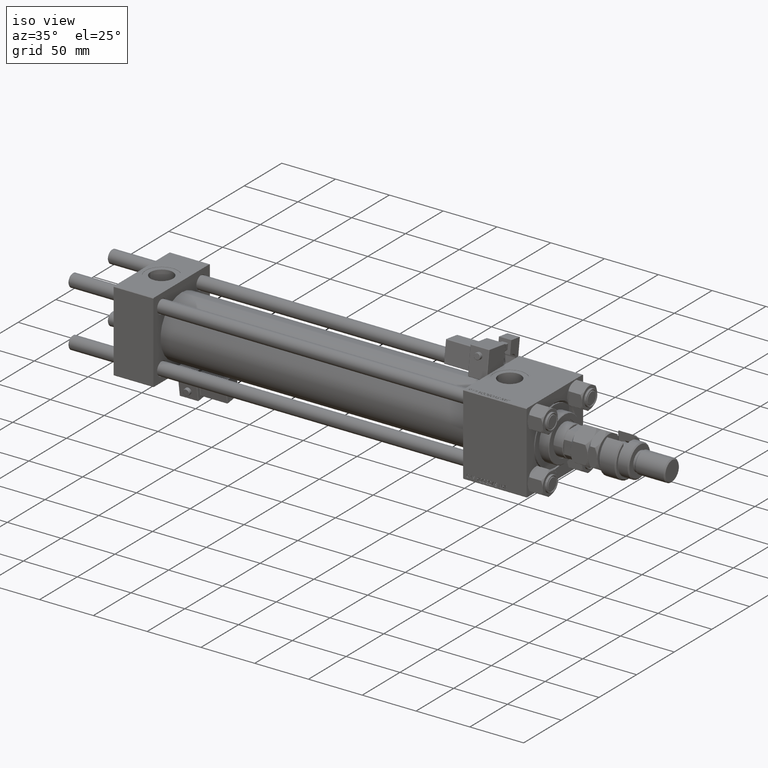
[diagram: clean part render]
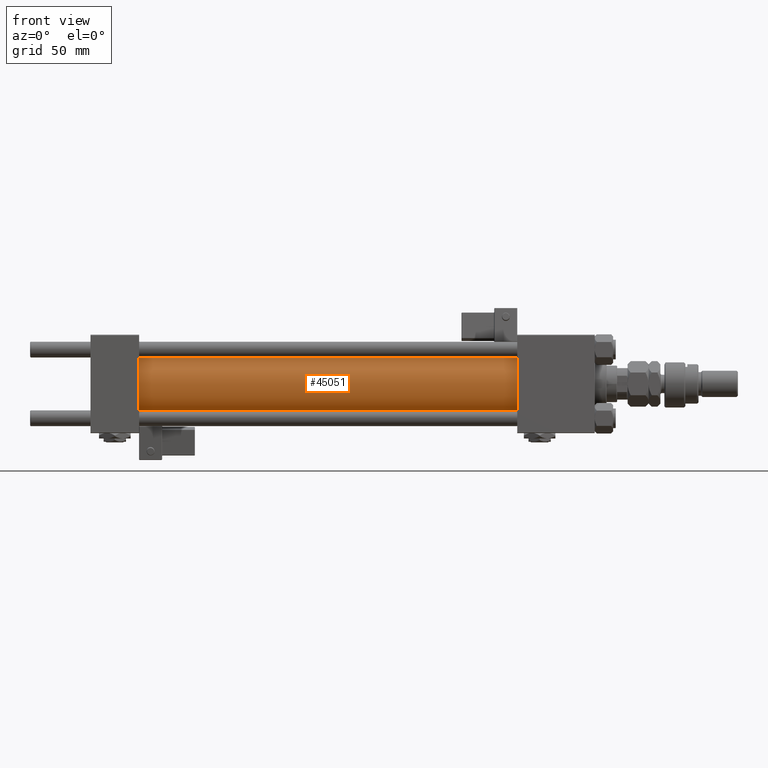
[diagram: tour spotlight — one face highlighted and labeled with its STEP entity id]
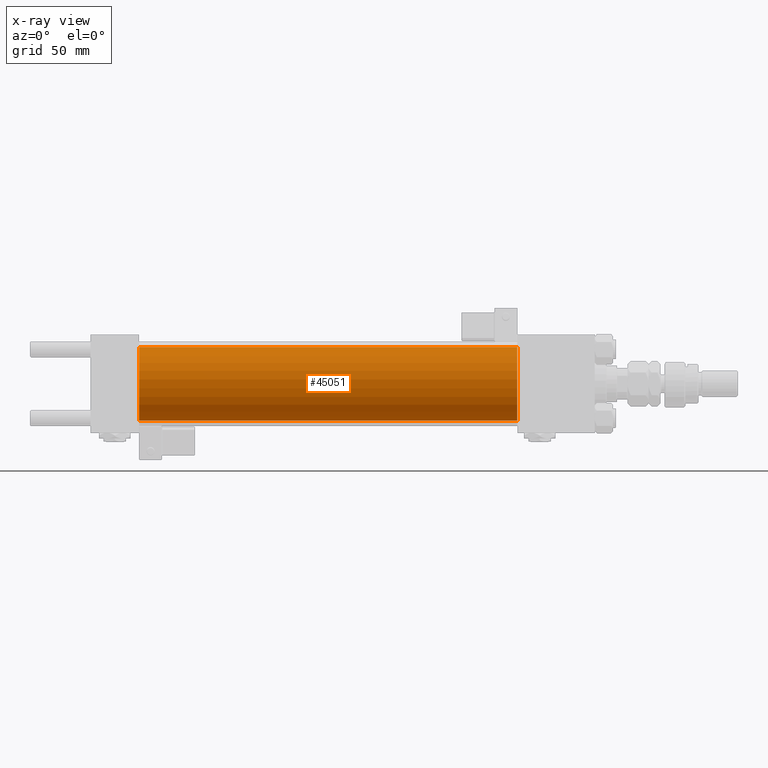
[diagram: x-ray of the same camera — body ghosted, this tour face saturated]
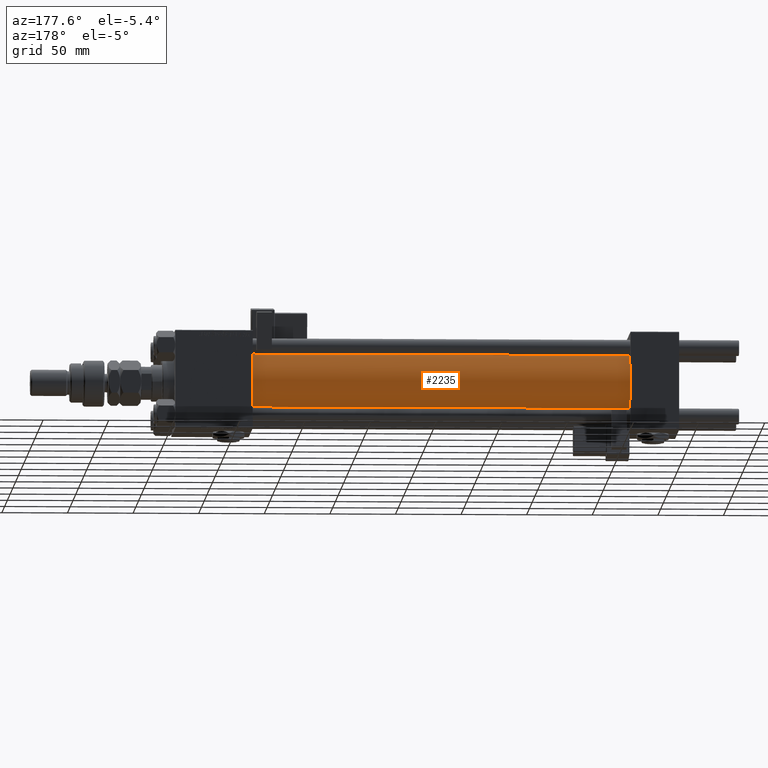
[diagram: tour spotlight — one face highlighted and labeled with its STEP entity id]
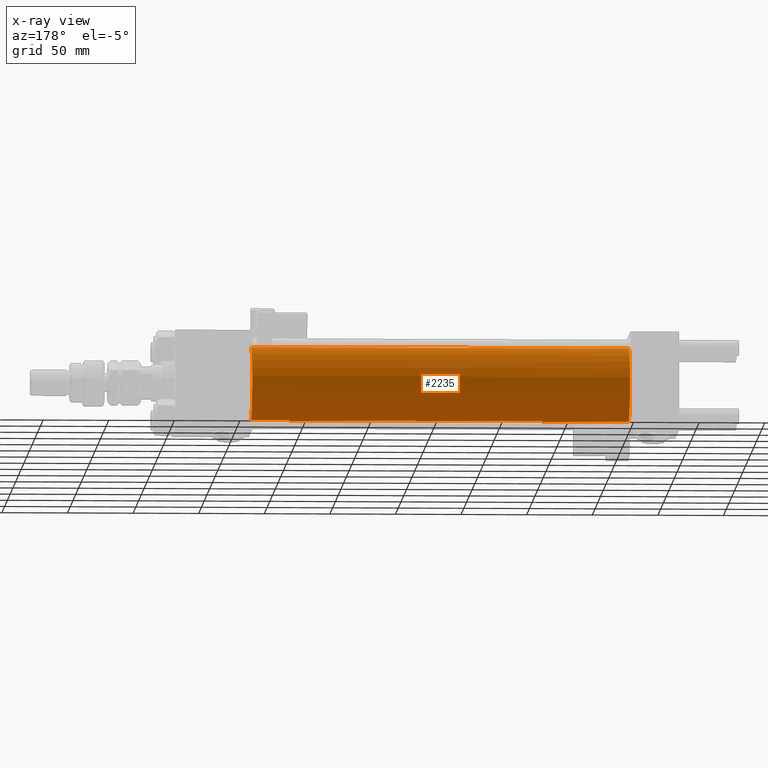
[diagram: x-ray of the same camera — body ghosted, this tour face saturated]
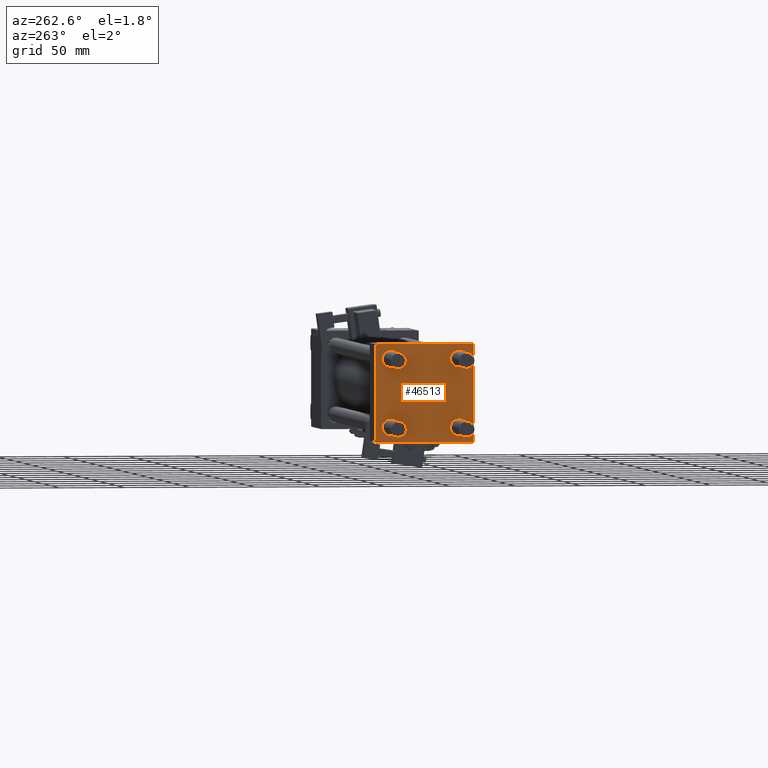
[diagram: tour spotlight — one face highlighted and labeled with its STEP entity id]
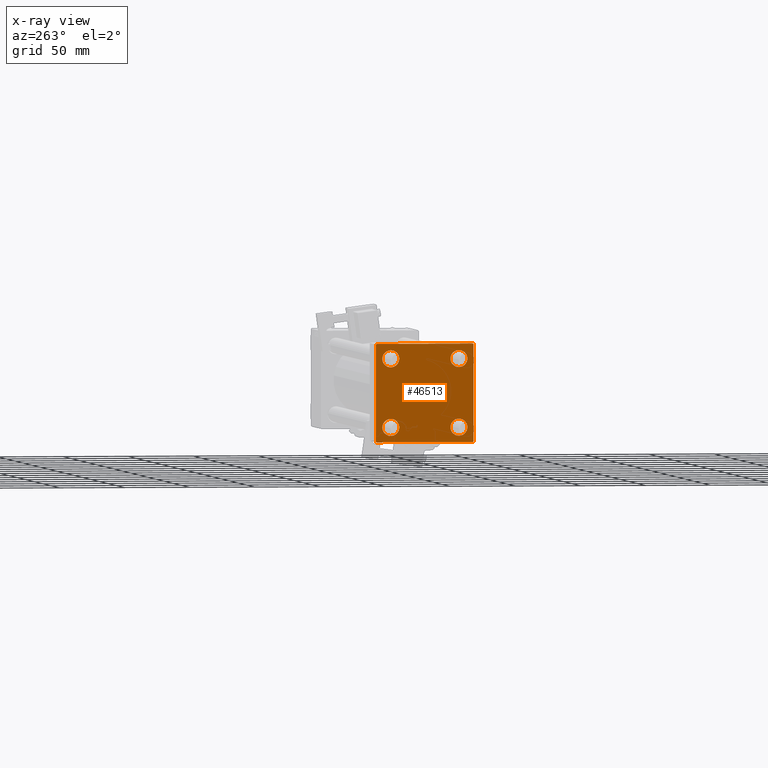
[diagram: x-ray of the same camera — body ghosted, this tour face saturated]
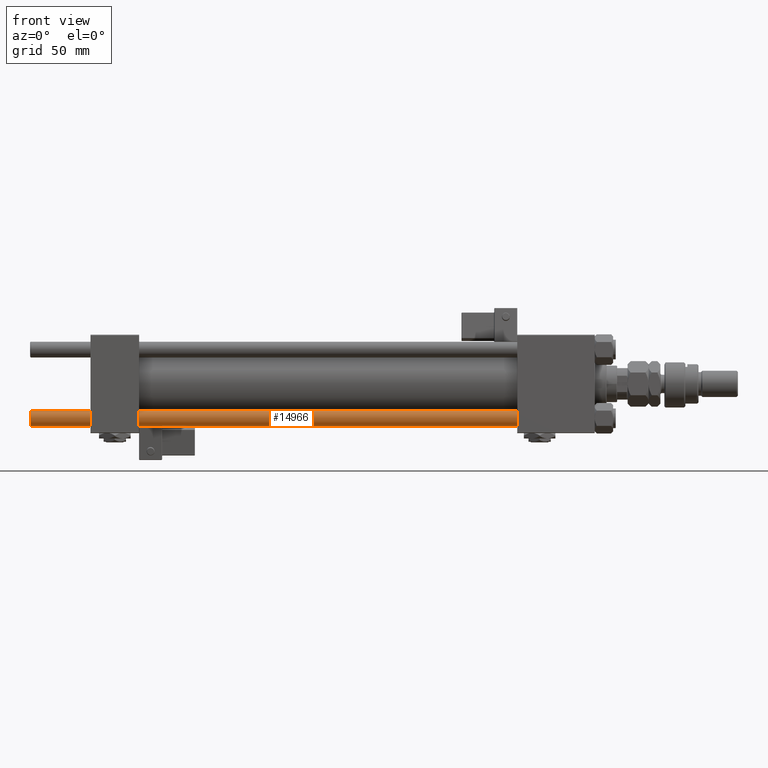
[diagram: tour spotlight — one face highlighted and labeled with its STEP entity id]
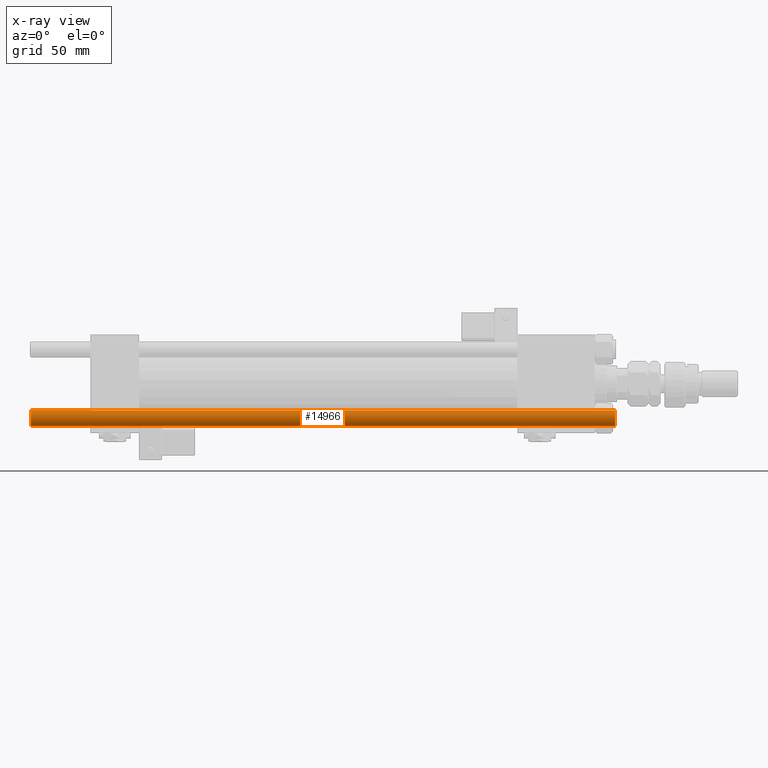
[diagram: x-ray of the same camera — body ghosted, this tour face saturated]
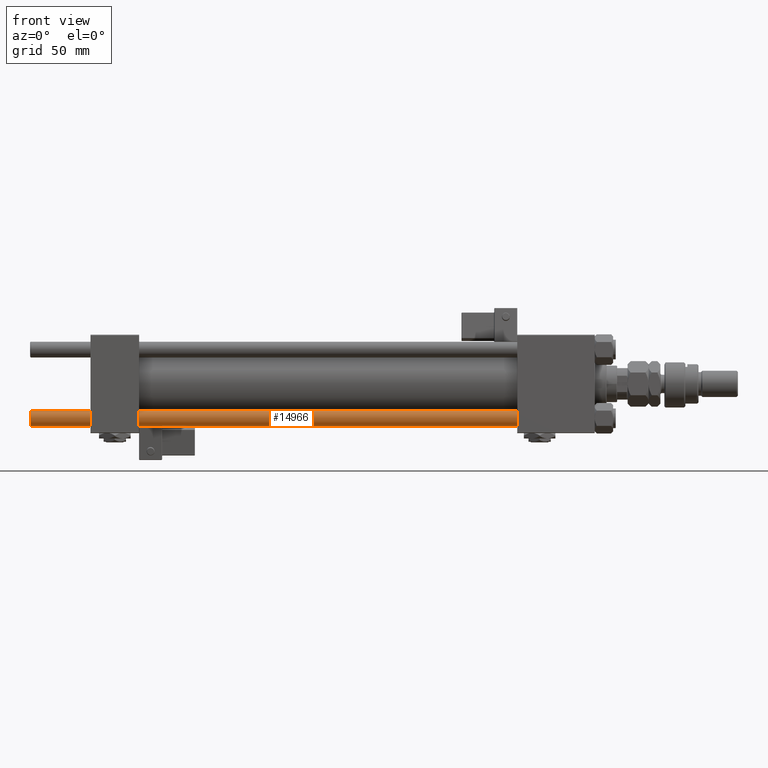
[diagram: tour spotlight — one face highlighted and labeled with its STEP entity id]
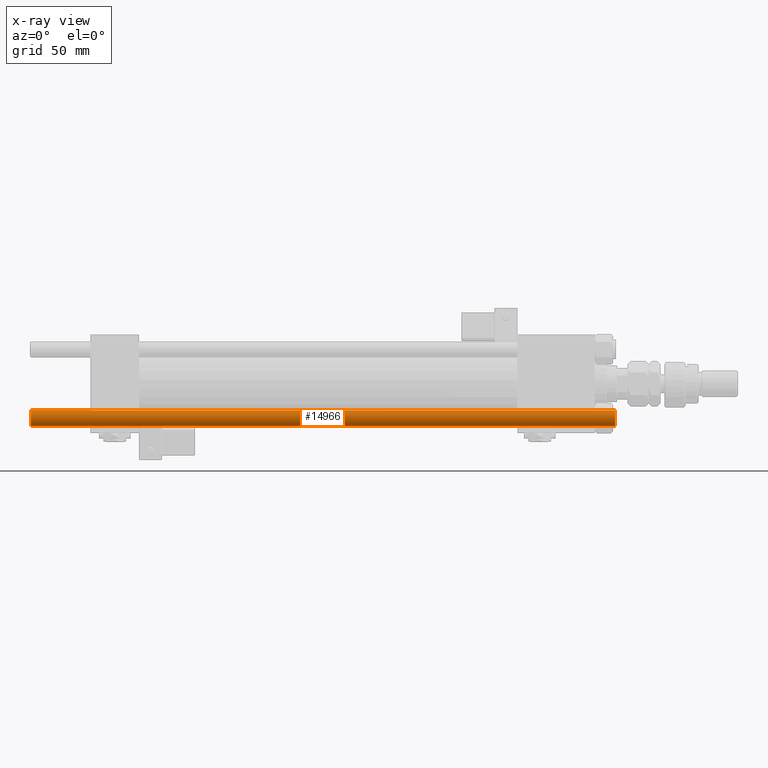
[diagram: x-ray of the same camera — body ghosted, this tour face saturated]
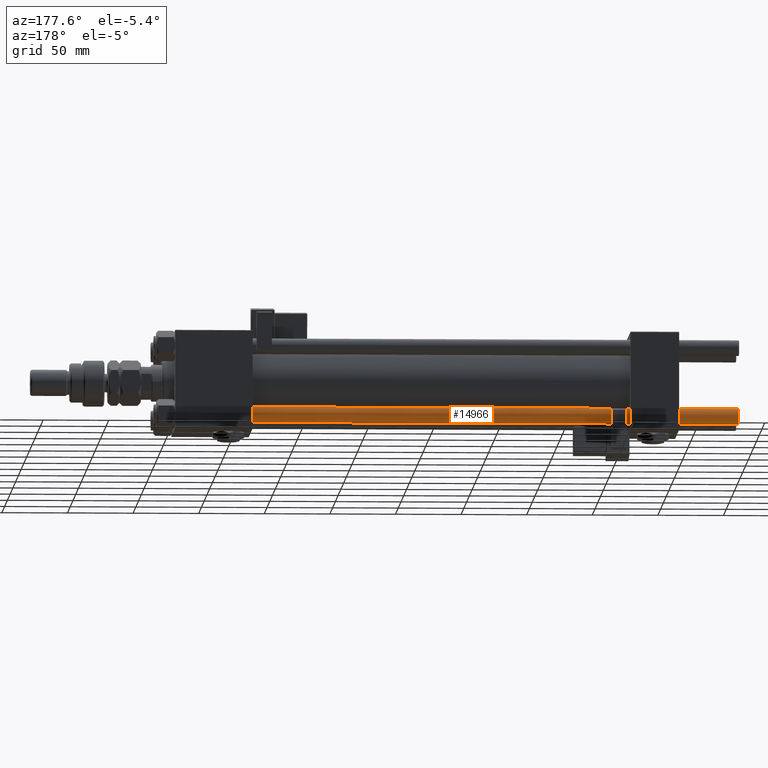
[diagram: tour spotlight — one face highlighted and labeled with its STEP entity id]
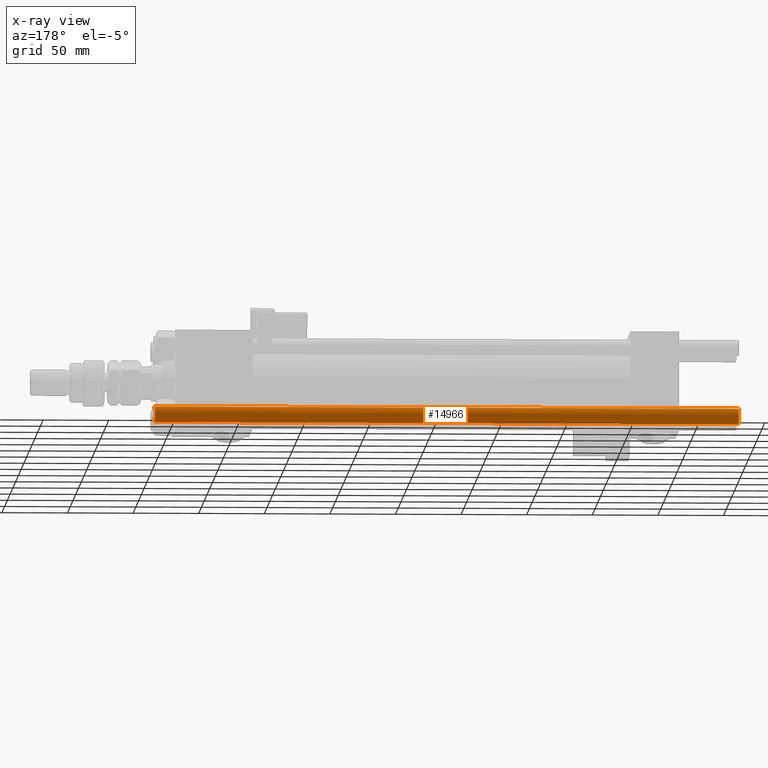
[diagram: x-ray of the same camera — body ghosted, this tour face saturated]
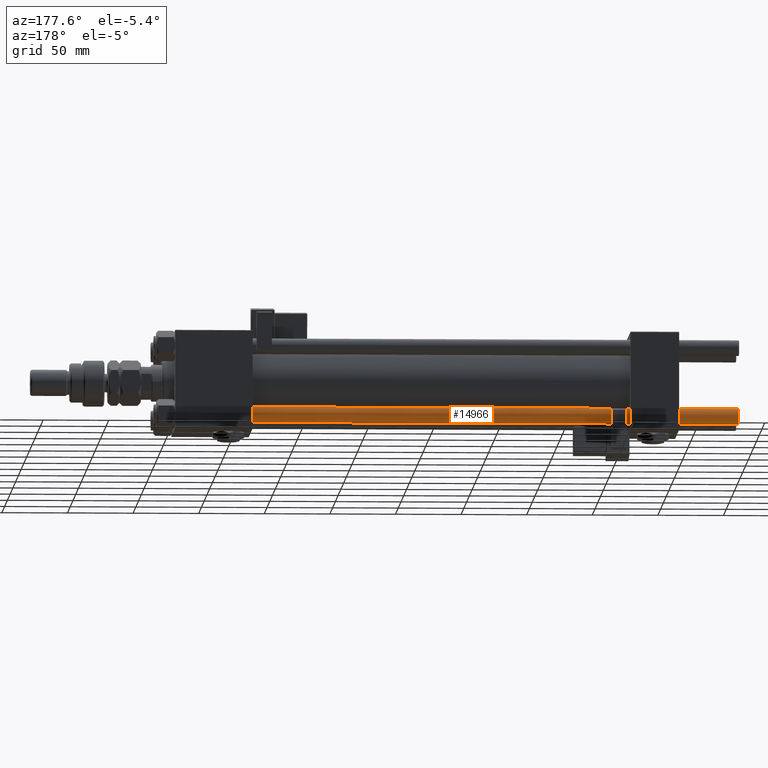
[diagram: tour spotlight — one face highlighted and labeled with its STEP entity id]
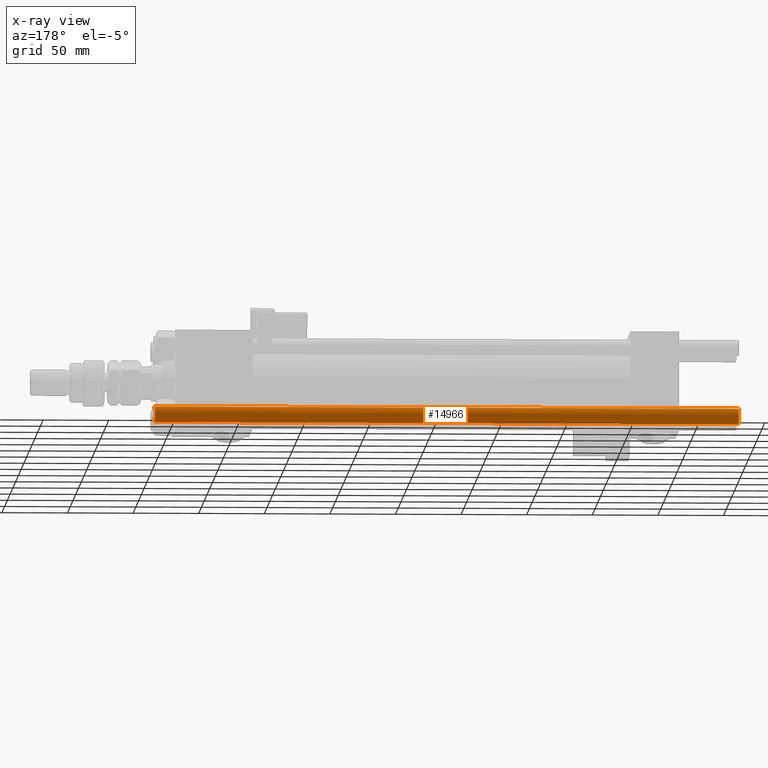
[diagram: x-ray of the same camera — body ghosted, this tour face saturated]
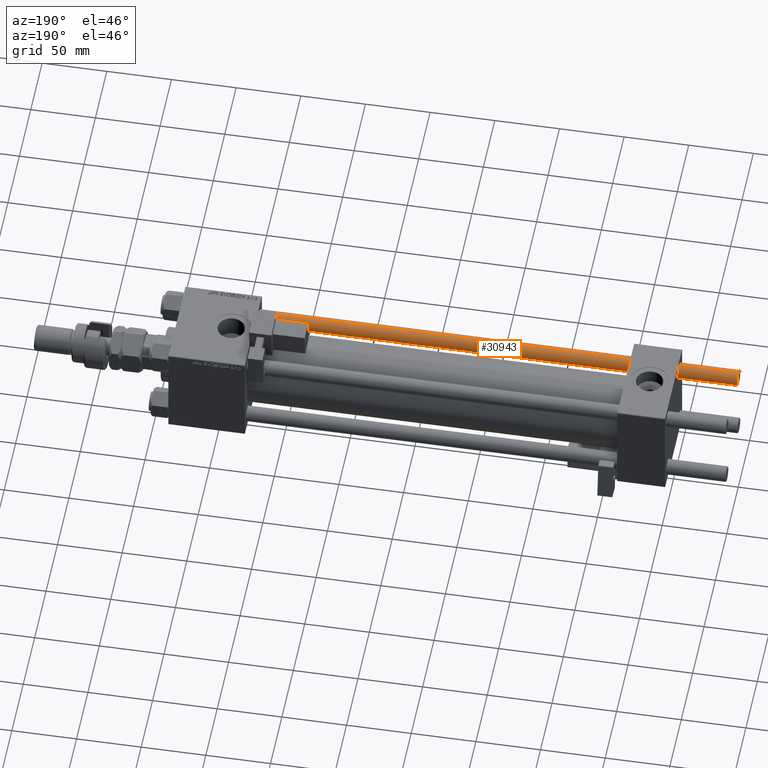
[diagram: tour spotlight — one face highlighted and labeled with its STEP entity id]
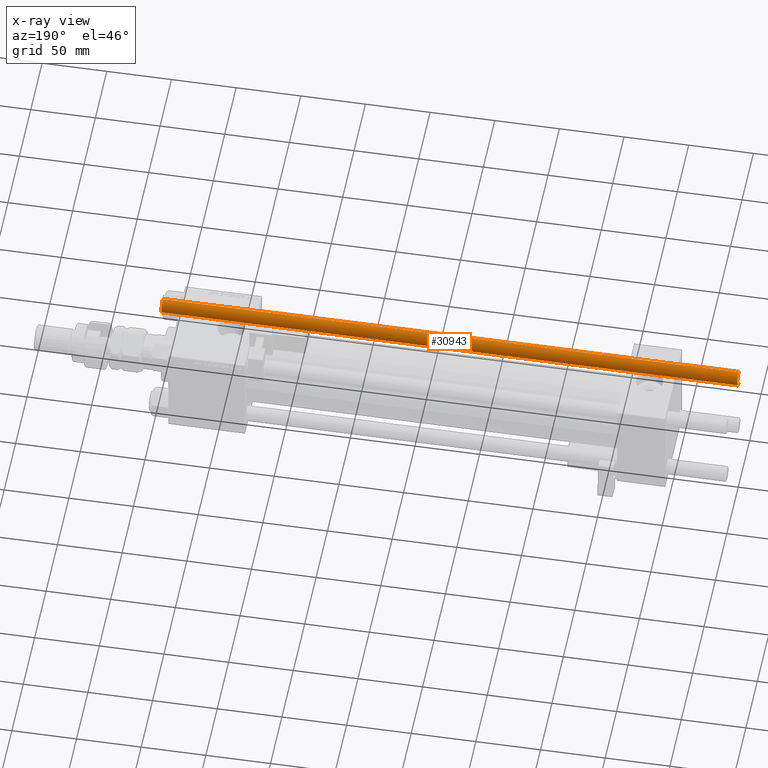
[diagram: x-ray of the same camera — body ghosted, this tour face saturated]
A machine part: a face-by-face anatomy tour. The part has 1472 B-rep faces; the first image is the clean iso view, then the 8 largest visible faces are spotlighted one at a time (largest first), each with its STEP entity span.

Face 1 — front view, entity #45051. An x-ray twin of the same camera follows (body ghosted, this face saturated) — the face is partly hidden behind the body. In plain terms, the highlighted cylindrical surface (partial cylindrical patch) has radius 28 mm, axis along (-1, -0, -0).
Definition (entity closure, byte-faithful):
#325 = CARTESIAN_POINT ( 'NONE',  ( 324.9999999999999432, 0.000000000000000000, 0.000000000000000000 ) ) ;
#915 = CARTESIAN_POINT ( 'NONE',  ( 36.99999999999997868, 0.000000000000000000, 0.000000000000000000 ) ) ;
#1011 = CARTESIAN_POINT ( 'NONE',  ( 36.99999999999997868, 3.429011037612589276E-15, -28.00000000000000000 ) ) ;
#3151 = CARTESIAN_POINT ( 'NONE',  ( 324.9999999999999432, 0.000000000000000000, 28.00000000000000000 ) ) ;
#3997 = LINE ( 'NONE', #3151, #42825 ) ;
#4378 = DIRECTION ( 'NONE',  ( 1.000000000000000000, -0.000000000000000000, 0.000000000000000000 ) ) ;
#4392 = AXIS2_PLACEMENT_3D ( 'NONE', #915, #4378, #17607 ) ;
#6531 = EDGE_CURVE ( 'NONE', #54790, #24582, #3997, .T. ) ;
#8095 = LINE ( 'NONE', #48013, #10348 ) ;
#8546 = EDGE_CURVE ( 'NONE', #24582, #41951, #13546, .T. ) ;
#8952 = CYLINDRICAL_SURFACE ( 'NONE', #34857, 28.00000000000000000 ) ;
#10088 = DIRECTION ( 'NONE',  ( 0.000000000000000000, 0.000000000000000000, -1.000000000000000000 ) ) ;
#10348 = VECTOR ( 'NONE', #25899, 1000.000000000000000 ) ;
#13546 = CIRCLE ( 'NONE', #4392, 28.00000000000000000 ) ;
#13855 = CARTESIAN_POINT ( 'NONE',  ( 324.9999999999999432, 0.000000000000000000, 0.000000000000000000 ) ) ;
#16079 = CARTESIAN_POINT ( 'NONE',  ( 324.9999999999999432, 0.000000000000000000, 28.00000000000000000 ) ) ;
#17607 = DIRECTION ( 'NONE',  ( 0.000000000000000000, 0.000000000000000000, 1.000000000000000000 ) ) ;
#18444 = DIRECTION ( 'NONE',  ( -1.000000000000000000, -0.000000000000000000, -0.000000000000000000 ) ) ;
#20045 = ORIENTED_EDGE ( 'NONE', *, *, #8546, .T. ) ;
#21516 = DIRECTION ( 'NONE',  ( -1.000000000000000000, -0.000000000000000000, -0.000000000000000000 ) ) ;
#24582 = VERTEX_POINT ( 'NONE', #29413 ) ;
#25488 = ORIENTED_EDGE ( 'NONE', *, *, #25920, .F. ) ;
#25899 = DIRECTION ( 'NONE',  ( -1.000000000000000000, -0.000000000000000000, -0.000000000000000000 ) ) ;
#25920 = EDGE_CURVE ( 'NONE', #51599, #41951, #8095, .T. ) ;
#26485 = DIRECTION ( 'NONE',  ( 0.000000000000000000, 0.000000000000000000, 1.000000000000000000 ) ) ;
#27894 = DIRECTION ( 'NONE',  ( 1.000000000000000000, 0.000000000000000000, 0.000000000000000000 ) ) ;
#29413 = CARTESIAN_POINT ( 'NONE',  ( 36.99999999999997868, 0.000000000000000000, 28.00000000000000000 ) ) ;
#31512 = ORIENTED_EDGE ( 'NONE', *, *, #37579, .F. ) ;
#34857 = AXIS2_PLACEMENT_3D ( 'NONE', #325, #18444, #26485 ) ;
#35165 = ORIENTED_EDGE ( 'NONE', *, *, #6531, .T. ) ;
#37579 = EDGE_CURVE ( 'NONE', #54790, #51599, #38241, .T. ) ;
#38241 = CIRCLE ( 'NONE', #40088, 28.00000000000000000 ) ;
#40088 = AXIS2_PLACEMENT_3D ( 'NONE', #13855, #27894, #10088 ) ;
#41951 = VERTEX_POINT ( 'NONE', #1011 ) ;
#42825 = VECTOR ( 'NONE', #21516, 1000.000000000000000 ) ;
#43448 = EDGE_LOOP ( 'NONE', ( #25488, #31512, #35165, #20045 ) ) ;
#45051 = ADVANCED_FACE ( 'NONE', ( #48600 ), #8952, .T. ) ;
#48013 = CARTESIAN_POINT ( 'NONE',  ( 324.9999999999999432, 3.429011037612589276E-15, -28.00000000000000000 ) ) ;
#48600 = FACE_OUTER_BOUND ( 'NONE', #43448, .T. ) ;
#51599 = VERTEX_POINT ( 'NONE', #54505 ) ;
#54505 = CARTESIAN_POINT ( 'NONE',  ( 324.9999999999999432, 3.429011037612589276E-15, -28.00000000000000000 ) ) ;
#54790 = VERTEX_POINT ( 'NONE', #16079 ) ;

Face 2 — auxiliary view, entity #2235. An x-ray twin of the same camera follows (body ghosted, this face saturated) — the face is partly hidden behind the body. In plain terms, the highlighted cylindrical surface (partial cylindrical patch) has radius 28 mm, axis along (-1, -0, -0).
Definition (entity closure, byte-faithful):
#641 = ORIENTED_EDGE ( 'NONE', *, *, #53775, .F. ) ;
#1011 = CARTESIAN_POINT ( 'NONE',  ( 36.99999999999997868, 3.429011037612589276E-15, -28.00000000000000000 ) ) ;
#1493 = AXIS2_PLACEMENT_3D ( 'NONE', #32660, #19459, #6528 ) ;
#2235 = ADVANCED_FACE ( 'NONE', ( #19136 ), #10786, .T. ) ;
#3151 = CARTESIAN_POINT ( 'NONE',  ( 324.9999999999999432, 0.000000000000000000, 28.00000000000000000 ) ) ;
#3997 = LINE ( 'NONE', #3151, #42825 ) ;
#5381 = DIRECTION ( 'NONE',  ( 1.000000000000000000, -0.000000000000000000, 0.000000000000000000 ) ) ;
#6528 = DIRECTION ( 'NONE',  ( 0.000000000000000000, 0.000000000000000000, -1.000000000000000000 ) ) ;
#6531 = EDGE_CURVE ( 'NONE', #54790, #24582, #3997, .T. ) ;
#7886 = CIRCLE ( 'NONE', #1493, 28.00000000000000000 ) ;
#8095 = LINE ( 'NONE', #48013, #10348 ) ;
#10348 = VECTOR ( 'NONE', #25899, 1000.000000000000000 ) ;
#10786 = CYLINDRICAL_SURFACE ( 'NONE', #17855, 28.00000000000000000 ) ;
#15983 = EDGE_LOOP ( 'NONE', ( #641, #35951, #25789, #52955 ) ) ;
#16079 = CARTESIAN_POINT ( 'NONE',  ( 324.9999999999999432, 0.000000000000000000, 28.00000000000000000 ) ) ;
#17855 = AXIS2_PLACEMENT_3D ( 'NONE', #28309, #19977, #45843 ) ;
#19136 = FACE_OUTER_BOUND ( 'NONE', #15983, .T. ) ;
#19459 = DIRECTION ( 'NONE',  ( 1.000000000000000000, 0.000000000000000000, 0.000000000000000000 ) ) ;
#19977 = DIRECTION ( 'NONE',  ( -1.000000000000000000, -0.000000000000000000, -0.000000000000000000 ) ) ;
#21516 = DIRECTION ( 'NONE',  ( -1.000000000000000000, -0.000000000000000000, -0.000000000000000000 ) ) ;
#24582 = VERTEX_POINT ( 'NONE', #29413 ) ;
#25789 = ORIENTED_EDGE ( 'NONE', *, *, #28677, .T. ) ;
#25899 = DIRECTION ( 'NONE',  ( -1.000000000000000000, -0.000000000000000000, -0.000000000000000000 ) ) ;
#25920 = EDGE_CURVE ( 'NONE', #51599, #41951, #8095, .T. ) ;
#26925 = AXIS2_PLACEMENT_3D ( 'NONE', #32358, #5381, #53627 ) ;
#28309 = CARTESIAN_POINT ( 'NONE',  ( 324.9999999999999432, 0.000000000000000000, 0.000000000000000000 ) ) ;
#28677 = EDGE_CURVE ( 'NONE', #41951, #24582, #44402, .T. ) ;
#29413 = CARTESIAN_POINT ( 'NONE',  ( 36.99999999999997868, 0.000000000000000000, 28.00000000000000000 ) ) ;
#32358 = CARTESIAN_POINT ( 'NONE',  ( 36.99999999999997868, 0.000000000000000000, 0.000000000000000000 ) ) ;
#32660 = CARTESIAN_POINT ( 'NONE',  ( 324.9999999999999432, 0.000000000000000000, 0.000000000000000000 ) ) ;
#35951 = ORIENTED_EDGE ( 'NONE', *, *, #25920, .T. ) ;
#41951 = VERTEX_POINT ( 'NONE', #1011 ) ;
#42825 = VECTOR ( 'NONE', #21516, 1000.000000000000000 ) ;
#44402 = CIRCLE ( 'NONE', #26925, 28.00000000000000000 ) ;
#45843 = DIRECTION ( 'NONE',  ( 0.000000000000000000, 0.000000000000000000, 1.000000000000000000 ) ) ;
#48013 = CARTESIAN_POINT ( 'NONE',  ( 324.9999999999999432, 3.429011037612589276E-15, -28.00000000000000000 ) ) ;
#51599 = VERTEX_POINT ( 'NONE', #54505 ) ;
#52955 = ORIENTED_EDGE ( 'NONE', *, *, #6531, .F. ) ;
#53627 = DIRECTION ( 'NONE',  ( 0.000000000000000000, 0.000000000000000000, 1.000000000000000000 ) ) ;
#53775 = EDGE_CURVE ( 'NONE', #51599, #54790, #7886, .T. ) ;
#54505 = CARTESIAN_POINT ( 'NONE',  ( 324.9999999999999432, 3.429011037612589276E-15, -28.00000000000000000 ) ) ;
#54790 = VERTEX_POINT ( 'NONE', #16079 ) ;

Face 3 — auxiliary view, entity #46513. An x-ray twin of the same camera follows (body ghosted, this face saturated) — the face is partly hidden behind the body. In plain terms, the highlighted planar face has unit normal (-1, 0, 0).
Definition (entity closure, byte-faithful):
#200 = DIRECTION ( 'NONE',  ( 1.000000000000000000, -0.000000000000000000, 0.000000000000000000 ) ) ;
#954 = CARTESIAN_POINT ( 'NONE',  ( 0.000000000000000000, 37.49999999999999289, -37.50000000000000000 ) ) ;
#1702 = DIRECTION ( 'NONE',  ( 1.000000000000000000, -0.000000000000000000, 0.000000000000000000 ) ) ;
#2538 = ORIENTED_EDGE ( 'NONE', *, *, #51319, .T. ) ;
#3727 = FACE_BOUND ( 'NONE', #7518, .T. ) ;
#3999 = CARTESIAN_POINT ( 'NONE',  ( 0.000000000000000000, 26.14999999999999858, 32.65000000000002700 ) ) ;
#4882 = EDGE_LOOP ( 'NONE', ( #38445, #39490 ) ) ;
#5285 = CARTESIAN_POINT ( 'NONE',  ( 0.000000000000000000, 26.14999999999999858, -32.65000000000001990 ) ) ;
#6182 = DIRECTION ( 'NONE',  ( 1.000000000000000000, -0.000000000000000000, 0.000000000000000000 ) ) ;
#7372 = DIRECTION ( 'NONE',  ( 0.000000000000000000, 9.251858538542971581E-17, -1.000000000000000000 ) ) ;
#7399 = CARTESIAN_POINT ( 'NONE',  ( 0.000000000000000000, 36.99999999999997868, -37.50000000000000000 ) ) ;
#7518 = EDGE_LOOP ( 'NONE', ( #19409, #51119 ) ) ;
#7702 = ORIENTED_EDGE ( 'NONE', *, *, #8991, .T. ) ;
#8044 = CIRCLE ( 'NONE', #38310, 6.500000000000023093 ) ;
#8612 = CARTESIAN_POINT ( 'NONE',  ( 0.000000000000000000, -26.14999999999999147, -32.65000000000002700 ) ) ;
#8991 = EDGE_CURVE ( 'NONE', #42348, #33348, #8044, .T. ) ;
#9218 = CARTESIAN_POINT ( 'NONE',  ( 0.000000000000000000, 36.99999999999999289, 37.50000000000000000 ) ) ;
#9454 = FACE_BOUND ( 'NONE', #33972, .T. ) ;
#9729 = CIRCLE ( 'NONE', #39101, 6.500000000000015987 ) ;
#10010 = ORIENTED_EDGE ( 'NONE', *, *, #51060, .T. ) ;
#10209 = CARTESIAN_POINT ( 'NONE',  ( 0.000000000000000000, -26.14999999999999147, 26.15000000000000924 ) ) ;
#10376 = DIRECTION ( 'NONE',  ( 0.000000000000000000, 0.000000000000000000, 1.000000000000000000 ) ) ;
#10387 = EDGE_CURVE ( 'NONE', #17097, #36727, #31850, .T. ) ;
#10633 = CIRCLE ( 'NONE', #17996, 6.500000000000023093 ) ;
#11215 = CARTESIAN_POINT ( 'NONE',  ( 0.000000000000000000, -26.14999999999999147, -26.15000000000000924 ) ) ;
#11354 = VERTEX_POINT ( 'NONE', #31157 ) ;
#11424 = CARTESIAN_POINT ( 'NONE',  ( 0.000000000000000000, 37.24999999999998579, -37.24999999999998579 ) ) ;
#11571 = EDGE_CURVE ( 'NONE', #17236, #29279, #48395, .T. ) ;
#12479 = VECTOR ( 'NONE', #34271, 1000.000000000000000 ) ;
#13904 = DIRECTION ( 'NONE',  ( 0.000000000000000000, -1.000000000000000000, -9.251858538542972814E-17 ) ) ;
#14382 = VECTOR ( 'NONE', #43720, 1000.000000000000000 ) ;
#14800 = VERTEX_POINT ( 'NONE', #48992 ) ;
#15465 = VERTEX_POINT ( 'NONE', #7399 ) ;
#15651 = CARTESIAN_POINT ( 'NONE',  ( -0.000000000000000000, -37.25000000000000000, 37.25000000000000000 ) ) ;
#15682 = PLANE ( 'NONE',  #38039 ) ;
#15733 = ORIENTED_EDGE ( 'NONE', *, *, #36021, .T. ) ;
#16208 = CARTESIAN_POINT ( 'NONE',  ( 0.000000000000000000, -26.14999999999999147, -26.15000000000000924 ) ) ;
#16627 = CARTESIAN_POINT ( 'NONE',  ( 0.000000000000000000, 26.14999999999999858, -26.15000000000000213 ) ) ;
#16658 = CARTESIAN_POINT ( 'NONE',  ( 0.000000000000000000, -37.00000000000002132, -37.50000000000000711 ) ) ;
#17097 = VERTEX_POINT ( 'NONE', #23954 ) ;
#17178 = DIRECTION ( 'NONE',  ( 0.000000000000000000, 0.000000000000000000, 1.000000000000000000 ) ) ;
#17236 = VERTEX_POINT ( 'NONE', #8612 ) ;
#17601 = EDGE_CURVE ( 'NONE', #24991, #53856, #55681, .T. ) ;
#17996 = AXIS2_PLACEMENT_3D ( 'NONE', #10209, #6182, #53584 ) ;
#18319 = VERTEX_POINT ( 'NONE', #5285 ) ;
#18733 = CARTESIAN_POINT ( 'NONE',  ( 0.000000000000000000, 26.14999999999999858, 26.15000000000000213 ) ) ;
#19232 = DIRECTION ( 'NONE',  ( 0.000000000000000000, 0.000000000000000000, 1.000000000000000000 ) ) ;
#19350 = CARTESIAN_POINT ( 'NONE',  ( 0.000000000000000000, 26.14999999999999858, 26.15000000000000213 ) ) ;
#19409 = ORIENTED_EDGE ( 'NONE', *, *, #49598, .T. ) ;
#19532 = LINE ( 'NONE', #49968, #45462 ) ;
#19667 = VERTEX_POINT ( 'NONE', #31297 ) ;
#20334 = CARTESIAN_POINT ( 'NONE',  ( 0.000000000000000000, -37.50000000000000711, 36.99999999999999289 ) ) ;
#20897 = DIRECTION ( 'NONE',  ( -0.000000000000000000, -0.7071067811865474617, -0.7071067811865474617 ) ) ;
#21079 = CARTESIAN_POINT ( 'NONE',  ( 0.000000000000000000, -37.24999999999975842, -37.25000000000027001 ) ) ;
#21246 = FACE_BOUND ( 'NONE', #4882, .T. ) ;
#21491 = ORIENTED_EDGE ( 'NONE', *, *, #37467, .F. ) ;
#21742 = VECTOR ( 'NONE', #13904, 1000.000000000000000 ) ;
#22323 = CARTESIAN_POINT ( 'NONE',  ( 0.000000000000000000, 26.14999999999999858, -26.15000000000000213 ) ) ;
#23075 = CIRCLE ( 'NONE', #55195, 6.500000000000023093 ) ;
#23954 = CARTESIAN_POINT ( 'NONE',  ( 0.000000000000000000, 26.14999999999999858, 19.64999999999998437 ) ) ;
#24155 = EDGE_CURVE ( 'NONE', #45428, #19667, #33497, .T. ) ;
#24433 = ORIENTED_EDGE ( 'NONE', *, *, #45440, .T. ) ;
#24991 = VERTEX_POINT ( 'NONE', #9218 ) ;
#26067 = VERTEX_POINT ( 'NONE', #16658 ) ;
#26535 = LINE ( 'NONE', #954, #21742 ) ;
#27281 = CARTESIAN_POINT ( 'NONE',  ( 0.000000000000000000, -26.14999999999999147, 26.15000000000000924 ) ) ;
#27375 = CARTESIAN_POINT ( 'NONE',  ( 0.000000000000000000, -26.14999999999999147, -19.64999999999999503 ) ) ;
#27535 = EDGE_CURVE ( 'NONE', #18319, #14800, #49836, .T. ) ;
#28358 = CARTESIAN_POINT ( 'NONE',  ( 0.000000000000000000, 37.49999999999999289, 37.00000000000000000 ) ) ;
#29279 = VERTEX_POINT ( 'NONE', #27375 ) ;
#29799 = CARTESIAN_POINT ( 'NONE',  ( 0.000000000000000000, 37.24999999999999289, 37.24999999999999289 ) ) ;
#30490 = LINE ( 'NONE', #48031, #14382 ) ;
#31157 = CARTESIAN_POINT ( 'NONE',  ( 0.000000000000000000, -37.00000000000000711, 37.49999999999999289 ) ) ;
#31297 = CARTESIAN_POINT ( 'NONE',  ( 0.000000000000000000, -37.50000000000000000, -37.00000000000003553 ) ) ;
#31850 = CIRCLE ( 'NONE', #51083, 6.500000000000023093 ) ;
#32185 = DIRECTION ( 'NONE',  ( 1.000000000000000000, -0.000000000000000000, 0.000000000000000000 ) ) ;
#32332 = FACE_OUTER_BOUND ( 'NONE', #37499, .T. ) ;
#32932 = ORIENTED_EDGE ( 'NONE', *, *, #36607, .T. ) ;
#33178 = CARTESIAN_POINT ( 'NONE',  ( 0.000000000000000000, -26.14999999999999147, 32.65000000000003411 ) ) ;
#33348 = VERTEX_POINT ( 'NONE', #33178 ) ;
#33497 = LINE ( 'NONE', #36975, #50620 ) ;
#33951 = VECTOR ( 'NONE', #47345, 1000.000000000000114 ) ;
#33972 = EDGE_LOOP ( 'NONE', ( #32932, #51463 ) ) ;
#34271 = DIRECTION ( 'NONE',  ( 0.000000000000000000, -0.7071067811865524577, 0.7071067811865426878 ) ) ;
#34834 = DIRECTION ( 'NONE',  ( 1.000000000000000000, -0.000000000000000000, 0.000000000000000000 ) ) ;
#36021 = EDGE_CURVE ( 'NONE', #33348, #42348, #10633, .T. ) ;
#36607 = EDGE_CURVE ( 'NONE', #29279, #17236, #9729, .T. ) ;
#36658 = DIRECTION ( 'NONE',  ( -1.000000000000000000, 0.000000000000000000, -0.000000000000000000 ) ) ;
#36727 = VERTEX_POINT ( 'NONE', #3999 ) ;
#36869 = DIRECTION ( 'NONE',  ( 1.000000000000000000, -0.000000000000000000, 0.000000000000000000 ) ) ;
#36975 = CARTESIAN_POINT ( 'NONE',  ( 0.000000000000000000, -37.50000000000000711, 37.49999999999999289 ) ) ;
#37467 = EDGE_CURVE ( 'NONE', #24991, #11354, #30490, .T. ) ;
#37499 = EDGE_LOOP ( 'NONE', ( #2538, #24433, #52385, #38894, #41499, #10010, #21491, #40121 ) ) ;
#37509 = DIRECTION ( 'NONE',  ( -0.000000000000000000, 0.000000000000000000, 1.000000000000000000 ) ) ;
#38039 = AXIS2_PLACEMENT_3D ( 'NONE', #50702, #36658, #37509 ) ;
#38310 = AXIS2_PLACEMENT_3D ( 'NONE', #27281, #1702, #19232 ) ;
#38445 = ORIENTED_EDGE ( 'NONE', *, *, #45765, .T. ) ;
#38685 = EDGE_CURVE ( 'NONE', #15465, #26067, #26535, .T. ) ;
#38780 = FACE_BOUND ( 'NONE', #45848, .T. ) ;
#38820 = AXIS2_PLACEMENT_3D ( 'NONE', #22323, #200, #17178 ) ;
#38894 = ORIENTED_EDGE ( 'NONE', *, *, #53274, .T. ) ;
#39101 = AXIS2_PLACEMENT_3D ( 'NONE', #11215, #32185, #41948 ) ;
#39490 = ORIENTED_EDGE ( 'NONE', *, *, #10387, .T. ) ;
#40121 = ORIENTED_EDGE ( 'NONE', *, *, #17601, .T. ) ;
#41417 = DIRECTION ( 'NONE',  ( 1.000000000000000000, -0.000000000000000000, 0.000000000000000000 ) ) ;
#41499 = ORIENTED_EDGE ( 'NONE', *, *, #24155, .F. ) ;
#41626 = CARTESIAN_POINT ( 'NONE',  ( 0.000000000000000000, 37.49999999999999289, -36.99999999999998579 ) ) ;
#41719 = VECTOR ( 'NONE', #45531, 1000.000000000000114 ) ;
#41948 = DIRECTION ( 'NONE',  ( 0.000000000000000000, 0.000000000000000000, 1.000000000000000000 ) ) ;
#42348 = VERTEX_POINT ( 'NONE', #51383 ) ;
#42752 = DIRECTION ( 'NONE',  ( 0.000000000000000000, 0.000000000000000000, 1.000000000000000000 ) ) ;
#43190 = DIRECTION ( 'NONE',  ( 0.000000000000000000, 0.000000000000000000, 1.000000000000000000 ) ) ;
#43720 = DIRECTION ( 'NONE',  ( 0.000000000000000000, -1.000000000000000000, -9.251858538542971581E-17 ) ) ;
#44613 = AXIS2_PLACEMENT_3D ( 'NONE', #16627, #51364, #42752 ) ;
#45428 = VERTEX_POINT ( 'NONE', #20334 ) ;
#45440 = EDGE_CURVE ( 'NONE', #52553, #15465, #51336, .T. ) ;
#45462 = VECTOR ( 'NONE', #50538, 1000.000000000000000 ) ;
#45531 = DIRECTION ( 'NONE',  ( -0.000000000000000000, 0.7071067811865474617, 0.7071067811865474617 ) ) ;
#45656 = AXIS2_PLACEMENT_3D ( 'NONE', #16208, #34834, #43190 ) ;
#45765 = EDGE_CURVE ( 'NONE', #36727, #17097, #23075, .T. ) ;
#45848 = EDGE_LOOP ( 'NONE', ( #15733, #7702 ) ) ;
#46105 = LINE ( 'NONE', #15651, #41719 ) ;
#46513 = ADVANCED_FACE ( 'NONE', ( #38780, #9454, #3727, #21246, #32332 ), #15682, .T. ) ;
#47219 = LINE ( 'NONE', #21079, #12479 ) ;
#47345 = DIRECTION ( 'NONE',  ( 0.000000000000000000, 0.7071067811865474617, -0.7071067811865474617 ) ) ;
#48031 = CARTESIAN_POINT ( 'NONE',  ( 0.000000000000000000, 37.49999999999999289, 37.50000000000000000 ) ) ;
#48395 = CIRCLE ( 'NONE', #45656, 6.500000000000015987 ) ;
#48992 = CARTESIAN_POINT ( 'NONE',  ( 0.000000000000000000, 26.14999999999999858, -19.64999999999998792 ) ) ;
#49598 = EDGE_CURVE ( 'NONE', #14800, #18319, #52834, .T. ) ;
#49836 = CIRCLE ( 'NONE', #38820, 6.500000000000015987 ) ;
#49968 = CARTESIAN_POINT ( 'NONE',  ( 0.000000000000000000, 37.49999999999999289, 37.50000000000000000 ) ) ;
#50538 = DIRECTION ( 'NONE',  ( 0.000000000000000000, 0.000000000000000000, -1.000000000000000000 ) ) ;
#50588 = VECTOR ( 'NONE', #20897, 1000.000000000000114 ) ;
#50620 = VECTOR ( 'NONE', #7372, 1000.000000000000000 ) ;
#50702 = CARTESIAN_POINT ( 'NONE',  ( 0.000000000000000000, 0.000000000000000000, 0.000000000000000000 ) ) ;
#51060 = EDGE_CURVE ( 'NONE', #45428, #11354, #46105, .T. ) ;
#51083 = AXIS2_PLACEMENT_3D ( 'NONE', #18733, #41417, #10376 ) ;
#51119 = ORIENTED_EDGE ( 'NONE', *, *, #27535, .T. ) ;
#51319 = EDGE_CURVE ( 'NONE', #53856, #52553, #19532, .T. ) ;
#51336 = LINE ( 'NONE', #11424, #50588 ) ;
#51364 = DIRECTION ( 'NONE',  ( 1.000000000000000000, -0.000000000000000000, 0.000000000000000000 ) ) ;
#51383 = CARTESIAN_POINT ( 'NONE',  ( 0.000000000000000000, -26.14999999999999147, 19.64999999999999147 ) ) ;
#51463 = ORIENTED_EDGE ( 'NONE', *, *, #11571, .T. ) ;
#52385 = ORIENTED_EDGE ( 'NONE', *, *, #38685, .T. ) ;
#52553 = VERTEX_POINT ( 'NONE', #41626 ) ;
#52834 = CIRCLE ( 'NONE', #44613, 6.500000000000015987 ) ;
#53274 = EDGE_CURVE ( 'NONE', #26067, #19667, #47219, .T. ) ;
#53584 = DIRECTION ( 'NONE',  ( 0.000000000000000000, 0.000000000000000000, 1.000000000000000000 ) ) ;
#53856 = VERTEX_POINT ( 'NONE', #28358 ) ;
#54385 = DIRECTION ( 'NONE',  ( 0.000000000000000000, 0.000000000000000000, 1.000000000000000000 ) ) ;
#55195 = AXIS2_PLACEMENT_3D ( 'NONE', #19350, #36869, #54385 ) ;
#55681 = LINE ( 'NONE', #29799, #33951 ) ;

Face 4 — front view, entity #14966. An x-ray twin of the same camera follows (body ghosted, this face saturated) — the face is partly hidden behind the body. In plain terms, the highlighted cylindrical surface (edge-blend (fillet) strip) has radius 6 mm, axis along (1, -0, 0).
Definition (entity closure, byte-faithful):
#2587 = CIRCLE ( 'NONE', #15439, 6.000000000000000888 ) ;
#3870 = DIRECTION ( 'NONE',  ( 0.000000000000000000, 0.000000000000000000, -1.000000000000000000 ) ) ;
#6173 = DIRECTION ( 'NONE',  ( -1.000000000000000000, 0.000000000000000000, 0.000000000000000000 ) ) ;
#6378 = CARTESIAN_POINT ( 'NONE',  ( 6.000000000000000888, 7.347880794884119736E-16, 0.5000000000003890221 ) ) ;
#7597 = EDGE_CURVE ( 'NONE', #27160, #55242, #42167, .T. ) ;
#8941 = VECTOR ( 'NONE', #24085, 1000.000000000000000 ) ;
#9337 = CARTESIAN_POINT ( 'NONE',  ( -6.000000000000000888, 0.000000000000000000, 446.0000000000000000 ) ) ;
#9919 = EDGE_CURVE ( 'NONE', #55242, #18338, #2587, .T. ) ;
#10186 = ORIENTED_EDGE ( 'NONE', *, *, #9919, .T. ) ;
#11333 = CARTESIAN_POINT ( 'NONE',  ( 0.000000000000000000, 0.000000000000000000, 446.0000000000000000 ) ) ;
#11413 = CIRCLE ( 'NONE', #24260, 6.000000000000000888 ) ;
#14966 = ADVANCED_FACE ( 'NONE', ( #45539 ), #28004, .T. ) ;
#15211 = VECTOR ( 'NONE', #53008, 1000.000000000000000 ) ;
#15439 = AXIS2_PLACEMENT_3D ( 'NONE', #16884, #42737, #56804 ) ;
#16247 = DIRECTION ( 'NONE',  ( 1.000000000000000000, 0.000000000000000000, 0.000000000000000000 ) ) ;
#16884 = CARTESIAN_POINT ( 'NONE',  ( 0.000000000000000000, 0.000000000000000000, 0.5000000000003890221 ) ) ;
#18338 = VERTEX_POINT ( 'NONE', #32266 ) ;
#22325 = ORIENTED_EDGE ( 'NONE', *, *, #7597, .T. ) ;
#24085 = DIRECTION ( 'NONE',  ( -0.000000000000000000, -0.000000000000000000, -1.000000000000000000 ) ) ;
#24260 = AXIS2_PLACEMENT_3D ( 'NONE', #39205, #3870, #16247 ) ;
#26118 = ORIENTED_EDGE ( 'NONE', *, *, #48766, .F. ) ;
#26138 = CARTESIAN_POINT ( 'NONE',  ( 6.000000000000000888, 7.347880794884119736E-16, 445.5000000000003411 ) ) ;
#27160 = VERTEX_POINT ( 'NONE', #26138 ) ;
#28004 = CYLINDRICAL_SURFACE ( 'NONE', #36625, 6.000000000000000888 ) ;
#32266 = CARTESIAN_POINT ( 'NONE',  ( -6.000000000000000888, 0.000000000000000000, 0.5000000000003890221 ) ) ;
#36625 = AXIS2_PLACEMENT_3D ( 'NONE', #11333, #37483, #6173 ) ;
#37483 = DIRECTION ( 'NONE',  ( -0.000000000000000000, -0.000000000000000000, -1.000000000000000000 ) ) ;
#39205 = CARTESIAN_POINT ( 'NONE',  ( 0.000000000000000000, 0.000000000000000000, 445.5000000000003411 ) ) ;
#41061 = ORIENTED_EDGE ( 'NONE', *, *, #46651, .T. ) ;
#42167 = LINE ( 'NONE', #55104, #8941 ) ;
#42737 = DIRECTION ( 'NONE',  ( -0.000000000000000000, -0.000000000000000000, 1.000000000000000000 ) ) ;
#43148 = VERTEX_POINT ( 'NONE', #46894 ) ;
#45539 = FACE_OUTER_BOUND ( 'NONE', #51914, .T. ) ;
#46651 = EDGE_CURVE ( 'NONE', #43148, #27160, #11413, .T. ) ;
#46894 = CARTESIAN_POINT ( 'NONE',  ( -6.000000000000000888, 0.000000000000000000, 445.5000000000003411 ) ) ;
#47846 = LINE ( 'NONE', #9337, #15211 ) ;
#48766 = EDGE_CURVE ( 'NONE', #43148, #18338, #47846, .T. ) ;
#51914 = EDGE_LOOP ( 'NONE', ( #41061, #22325, #10186, #26118 ) ) ;
#53008 = DIRECTION ( 'NONE',  ( -0.000000000000000000, -0.000000000000000000, -1.000000000000000000 ) ) ;
#55104 = CARTESIAN_POINT ( 'NONE',  ( 6.000000000000000888, 7.347880794884119736E-16, 446.0000000000000000 ) ) ;
#55242 = VERTEX_POINT ( 'NONE', #6378 ) ;
#56804 = DIRECTION ( 'NONE',  ( 1.000000000000000000, 0.000000000000000000, 0.000000000000000000 ) ) ;

Face 5 — front view, entity #14966. An x-ray twin of the same camera follows (body ghosted, this face saturated) — the face is partly hidden behind the body. In plain terms, the highlighted cylindrical surface (edge-blend (fillet) strip) has radius 6 mm, axis along (-1, 0, 0).
Definition (entity closure, byte-faithful):
#2587 = CIRCLE ( 'NONE', #15439, 6.000000000000000888 ) ;
#3870 = DIRECTION ( 'NONE',  ( 0.000000000000000000, 0.000000000000000000, -1.000000000000000000 ) ) ;
#6173 = DIRECTION ( 'NONE',  ( -1.000000000000000000, 0.000000000000000000, 0.000000000000000000 ) ) ;
#6378 = CARTESIAN_POINT ( 'NONE',  ( 6.000000000000000888, 7.347880794884119736E-16, 0.5000000000003890221 ) ) ;
#7597 = EDGE_CURVE ( 'NONE', #27160, #55242, #42167, .T. ) ;
#8941 = VECTOR ( 'NONE', #24085, 1000.000000000000000 ) ;
#9337 = CARTESIAN_POINT ( 'NONE',  ( -6.000000000000000888, 0.000000000000000000, 446.0000000000000000 ) ) ;
#9919 = EDGE_CURVE ( 'NONE', #55242, #18338, #2587, .T. ) ;
#10186 = ORIENTED_EDGE ( 'NONE', *, *, #9919, .T. ) ;
#11333 = CARTESIAN_POINT ( 'NONE',  ( 0.000000000000000000, 0.000000000000000000, 446.0000000000000000 ) ) ;
#11413 = CIRCLE ( 'NONE', #24260, 6.000000000000000888 ) ;
#14966 = ADVANCED_FACE ( 'NONE', ( #45539 ), #28004, .T. ) ;
#15211 = VECTOR ( 'NONE', #53008, 1000.000000000000000 ) ;
#15439 = AXIS2_PLACEMENT_3D ( 'NONE', #16884, #42737, #56804 ) ;
#16247 = DIRECTION ( 'NONE',  ( 1.000000000000000000, 0.000000000000000000, 0.000000000000000000 ) ) ;
#16884 = CARTESIAN_POINT ( 'NONE',  ( 0.000000000000000000, 0.000000000000000000, 0.5000000000003890221 ) ) ;
#18338 = VERTEX_POINT ( 'NONE', #32266 ) ;
#22325 = ORIENTED_EDGE ( 'NONE', *, *, #7597, .T. ) ;
#24085 = DIRECTION ( 'NONE',  ( -0.000000000000000000, -0.000000000000000000, -1.000000000000000000 ) ) ;
#24260 = AXIS2_PLACEMENT_3D ( 'NONE', #39205, #3870, #16247 ) ;
#26118 = ORIENTED_EDGE ( 'NONE', *, *, #48766, .F. ) ;
#26138 = CARTESIAN_POINT ( 'NONE',  ( 6.000000000000000888, 7.347880794884119736E-16, 445.5000000000003411 ) ) ;
#27160 = VERTEX_POINT ( 'NONE', #26138 ) ;
#28004 = CYLINDRICAL_SURFACE ( 'NONE', #36625, 6.000000000000000888 ) ;
#32266 = CARTESIAN_POINT ( 'NONE',  ( -6.000000000000000888, 0.000000000000000000, 0.5000000000003890221 ) ) ;
#36625 = AXIS2_PLACEMENT_3D ( 'NONE', #11333, #37483, #6173 ) ;
#37483 = DIRECTION ( 'NONE',  ( -0.000000000000000000, -0.000000000000000000, -1.000000000000000000 ) ) ;
#39205 = CARTESIAN_POINT ( 'NONE',  ( 0.000000000000000000, 0.000000000000000000, 445.5000000000003411 ) ) ;
#41061 = ORIENTED_EDGE ( 'NONE', *, *, #46651, .T. ) ;
#42167 = LINE ( 'NONE', #55104, #8941 ) ;
#42737 = DIRECTION ( 'NONE',  ( -0.000000000000000000, -0.000000000000000000, 1.000000000000000000 ) ) ;
#43148 = VERTEX_POINT ( 'NONE', #46894 ) ;
#45539 = FACE_OUTER_BOUND ( 'NONE', #51914, .T. ) ;
#46651 = EDGE_CURVE ( 'NONE', #43148, #27160, #11413, .T. ) ;
#46894 = CARTESIAN_POINT ( 'NONE',  ( -6.000000000000000888, 0.000000000000000000, 445.5000000000003411 ) ) ;
#47846 = LINE ( 'NONE', #9337, #15211 ) ;
#48766 = EDGE_CURVE ( 'NONE', #43148, #18338, #47846, .T. ) ;
#51914 = EDGE_LOOP ( 'NONE', ( #41061, #22325, #10186, #26118 ) ) ;
#53008 = DIRECTION ( 'NONE',  ( -0.000000000000000000, -0.000000000000000000, -1.000000000000000000 ) ) ;
#55104 = CARTESIAN_POINT ( 'NONE',  ( 6.000000000000000888, 7.347880794884119736E-16, 446.0000000000000000 ) ) ;
#55242 = VERTEX_POINT ( 'NONE', #6378 ) ;
#56804 = DIRECTION ( 'NONE',  ( 1.000000000000000000, 0.000000000000000000, 0.000000000000000000 ) ) ;

Face 6 — auxiliary view, entity #14966. An x-ray twin of the same camera follows (body ghosted, this face saturated) — the face is partly hidden behind the body. In plain terms, the highlighted cylindrical surface (edge-blend (fillet) strip) has radius 6 mm, axis along (-1, -0, -0).
Definition (entity closure, byte-faithful):
#2587 = CIRCLE ( 'NONE', #15439, 6.000000000000000888 ) ;
#3870 = DIRECTION ( 'NONE',  ( 0.000000000000000000, 0.000000000000000000, -1.000000000000000000 ) ) ;
#6173 = DIRECTION ( 'NONE',  ( -1.000000000000000000, 0.000000000000000000, 0.000000000000000000 ) ) ;
#6378 = CARTESIAN_POINT ( 'NONE',  ( 6.000000000000000888, 7.347880794884119736E-16, 0.5000000000003890221 ) ) ;
#7597 = EDGE_CURVE ( 'NONE', #27160, #55242, #42167, .T. ) ;
#8941 = VECTOR ( 'NONE', #24085, 1000.000000000000000 ) ;
#9337 = CARTESIAN_POINT ( 'NONE',  ( -6.000000000000000888, 0.000000000000000000, 446.0000000000000000 ) ) ;
#9919 = EDGE_CURVE ( 'NONE', #55242, #18338, #2587, .T. ) ;
#10186 = ORIENTED_EDGE ( 'NONE', *, *, #9919, .T. ) ;
#11333 = CARTESIAN_POINT ( 'NONE',  ( 0.000000000000000000, 0.000000000000000000, 446.0000000000000000 ) ) ;
#11413 = CIRCLE ( 'NONE', #24260, 6.000000000000000888 ) ;
#14966 = ADVANCED_FACE ( 'NONE', ( #45539 ), #28004, .T. ) ;
#15211 = VECTOR ( 'NONE', #53008, 1000.000000000000000 ) ;
#15439 = AXIS2_PLACEMENT_3D ( 'NONE', #16884, #42737, #56804 ) ;
#16247 = DIRECTION ( 'NONE',  ( 1.000000000000000000, 0.000000000000000000, 0.000000000000000000 ) ) ;
#16884 = CARTESIAN_POINT ( 'NONE',  ( 0.000000000000000000, 0.000000000000000000, 0.5000000000003890221 ) ) ;
#18338 = VERTEX_POINT ( 'NONE', #32266 ) ;
#22325 = ORIENTED_EDGE ( 'NONE', *, *, #7597, .T. ) ;
#24085 = DIRECTION ( 'NONE',  ( -0.000000000000000000, -0.000000000000000000, -1.000000000000000000 ) ) ;
#24260 = AXIS2_PLACEMENT_3D ( 'NONE', #39205, #3870, #16247 ) ;
#26118 = ORIENTED_EDGE ( 'NONE', *, *, #48766, .F. ) ;
#26138 = CARTESIAN_POINT ( 'NONE',  ( 6.000000000000000888, 7.347880794884119736E-16, 445.5000000000003411 ) ) ;
#27160 = VERTEX_POINT ( 'NONE', #26138 ) ;
#28004 = CYLINDRICAL_SURFACE ( 'NONE', #36625, 6.000000000000000888 ) ;
#32266 = CARTESIAN_POINT ( 'NONE',  ( -6.000000000000000888, 0.000000000000000000, 0.5000000000003890221 ) ) ;
#36625 = AXIS2_PLACEMENT_3D ( 'NONE', #11333, #37483, #6173 ) ;
#37483 = DIRECTION ( 'NONE',  ( -0.000000000000000000, -0.000000000000000000, -1.000000000000000000 ) ) ;
#39205 = CARTESIAN_POINT ( 'NONE',  ( 0.000000000000000000, 0.000000000000000000, 445.5000000000003411 ) ) ;
#41061 = ORIENTED_EDGE ( 'NONE', *, *, #46651, .T. ) ;
#42167 = LINE ( 'NONE', #55104, #8941 ) ;
#42737 = DIRECTION ( 'NONE',  ( -0.000000000000000000, -0.000000000000000000, 1.000000000000000000 ) ) ;
#43148 = VERTEX_POINT ( 'NONE', #46894 ) ;
#45539 = FACE_OUTER_BOUND ( 'NONE', #51914, .T. ) ;
#46651 = EDGE_CURVE ( 'NONE', #43148, #27160, #11413, .T. ) ;
#46894 = CARTESIAN_POINT ( 'NONE',  ( -6.000000000000000888, 0.000000000000000000, 445.5000000000003411 ) ) ;
#47846 = LINE ( 'NONE', #9337, #15211 ) ;
#48766 = EDGE_CURVE ( 'NONE', #43148, #18338, #47846, .T. ) ;
#51914 = EDGE_LOOP ( 'NONE', ( #41061, #22325, #10186, #26118 ) ) ;
#53008 = DIRECTION ( 'NONE',  ( -0.000000000000000000, -0.000000000000000000, -1.000000000000000000 ) ) ;
#55104 = CARTESIAN_POINT ( 'NONE',  ( 6.000000000000000888, 7.347880794884119736E-16, 446.0000000000000000 ) ) ;
#55242 = VERTEX_POINT ( 'NONE', #6378 ) ;
#56804 = DIRECTION ( 'NONE',  ( 1.000000000000000000, 0.000000000000000000, 0.000000000000000000 ) ) ;

Face 7 — auxiliary view, entity #14966. An x-ray twin of the same camera follows (body ghosted, this face saturated) — the face is partly hidden behind the body. In plain terms, the highlighted cylindrical surface (edge-blend (fillet) strip) has radius 6 mm, axis along (1, 0, -0).
Definition (entity closure, byte-faithful):
#2587 = CIRCLE ( 'NONE', #15439, 6.000000000000000888 ) ;
#3870 = DIRECTION ( 'NONE',  ( 0.000000000000000000, 0.000000000000000000, -1.000000000000000000 ) ) ;
#6173 = DIRECTION ( 'NONE',  ( -1.000000000000000000, 0.000000000000000000, 0.000000000000000000 ) ) ;
#6378 = CARTESIAN_POINT ( 'NONE',  ( 6.000000000000000888, 7.347880794884119736E-16, 0.5000000000003890221 ) ) ;
#7597 = EDGE_CURVE ( 'NONE', #27160, #55242, #42167, .T. ) ;
#8941 = VECTOR ( 'NONE', #24085, 1000.000000000000000 ) ;
#9337 = CARTESIAN_POINT ( 'NONE',  ( -6.000000000000000888, 0.000000000000000000, 446.0000000000000000 ) ) ;
#9919 = EDGE_CURVE ( 'NONE', #55242, #18338, #2587, .T. ) ;
#10186 = ORIENTED_EDGE ( 'NONE', *, *, #9919, .T. ) ;
#11333 = CARTESIAN_POINT ( 'NONE',  ( 0.000000000000000000, 0.000000000000000000, 446.0000000000000000 ) ) ;
#11413 = CIRCLE ( 'NONE', #24260, 6.000000000000000888 ) ;
#14966 = ADVANCED_FACE ( 'NONE', ( #45539 ), #28004, .T. ) ;
#15211 = VECTOR ( 'NONE', #53008, 1000.000000000000000 ) ;
#15439 = AXIS2_PLACEMENT_3D ( 'NONE', #16884, #42737, #56804 ) ;
#16247 = DIRECTION ( 'NONE',  ( 1.000000000000000000, 0.000000000000000000, 0.000000000000000000 ) ) ;
#16884 = CARTESIAN_POINT ( 'NONE',  ( 0.000000000000000000, 0.000000000000000000, 0.5000000000003890221 ) ) ;
#18338 = VERTEX_POINT ( 'NONE', #32266 ) ;
#22325 = ORIENTED_EDGE ( 'NONE', *, *, #7597, .T. ) ;
#24085 = DIRECTION ( 'NONE',  ( -0.000000000000000000, -0.000000000000000000, -1.000000000000000000 ) ) ;
#24260 = AXIS2_PLACEMENT_3D ( 'NONE', #39205, #3870, #16247 ) ;
#26118 = ORIENTED_EDGE ( 'NONE', *, *, #48766, .F. ) ;
#26138 = CARTESIAN_POINT ( 'NONE',  ( 6.000000000000000888, 7.347880794884119736E-16, 445.5000000000003411 ) ) ;
#27160 = VERTEX_POINT ( 'NONE', #26138 ) ;
#28004 = CYLINDRICAL_SURFACE ( 'NONE', #36625, 6.000000000000000888 ) ;
#32266 = CARTESIAN_POINT ( 'NONE',  ( -6.000000000000000888, 0.000000000000000000, 0.5000000000003890221 ) ) ;
#36625 = AXIS2_PLACEMENT_3D ( 'NONE', #11333, #37483, #6173 ) ;
#37483 = DIRECTION ( 'NONE',  ( -0.000000000000000000, -0.000000000000000000, -1.000000000000000000 ) ) ;
#39205 = CARTESIAN_POINT ( 'NONE',  ( 0.000000000000000000, 0.000000000000000000, 445.5000000000003411 ) ) ;
#41061 = ORIENTED_EDGE ( 'NONE', *, *, #46651, .T. ) ;
#42167 = LINE ( 'NONE', #55104, #8941 ) ;
#42737 = DIRECTION ( 'NONE',  ( -0.000000000000000000, -0.000000000000000000, 1.000000000000000000 ) ) ;
#43148 = VERTEX_POINT ( 'NONE', #46894 ) ;
#45539 = FACE_OUTER_BOUND ( 'NONE', #51914, .T. ) ;
#46651 = EDGE_CURVE ( 'NONE', #43148, #27160, #11413, .T. ) ;
#46894 = CARTESIAN_POINT ( 'NONE',  ( -6.000000000000000888, 0.000000000000000000, 445.5000000000003411 ) ) ;
#47846 = LINE ( 'NONE', #9337, #15211 ) ;
#48766 = EDGE_CURVE ( 'NONE', #43148, #18338, #47846, .T. ) ;
#51914 = EDGE_LOOP ( 'NONE', ( #41061, #22325, #10186, #26118 ) ) ;
#53008 = DIRECTION ( 'NONE',  ( -0.000000000000000000, -0.000000000000000000, -1.000000000000000000 ) ) ;
#55104 = CARTESIAN_POINT ( 'NONE',  ( 6.000000000000000888, 7.347880794884119736E-16, 446.0000000000000000 ) ) ;
#55242 = VERTEX_POINT ( 'NONE', #6378 ) ;
#56804 = DIRECTION ( 'NONE',  ( 1.000000000000000000, 0.000000000000000000, 0.000000000000000000 ) ) ;

Face 8 — auxiliary view, entity #30943. An x-ray twin of the same camera follows (body ghosted, this face saturated) — the face is partly hidden behind the body. In plain terms, the highlighted cylindrical surface (edge-blend (fillet) strip) has radius 6 mm, axis along (1, -0, 0).
Definition (entity closure, byte-faithful):
#997 = CARTESIAN_POINT ( 'NONE',  ( 0.000000000000000000, 0.000000000000000000, 0.5000000000003890221 ) ) ;
#1268 = DIRECTION ( 'NONE',  ( -0.000000000000000000, -0.000000000000000000, 1.000000000000000000 ) ) ;
#1927 = DIRECTION ( 'NONE',  ( 1.000000000000000000, 0.000000000000000000, 0.000000000000000000 ) ) ;
#5961 = AXIS2_PLACEMENT_3D ( 'NONE', #22858, #49276, #36339 ) ;
#6378 = CARTESIAN_POINT ( 'NONE',  ( 6.000000000000000888, 7.347880794884119736E-16, 0.5000000000003890221 ) ) ;
#7597 = EDGE_CURVE ( 'NONE', #27160, #55242, #42167, .T. ) ;
#8941 = VECTOR ( 'NONE', #24085, 1000.000000000000000 ) ;
#9337 = CARTESIAN_POINT ( 'NONE',  ( -6.000000000000000888, 0.000000000000000000, 446.0000000000000000 ) ) ;
#11109 = CARTESIAN_POINT ( 'NONE',  ( 0.000000000000000000, 0.000000000000000000, 445.5000000000003411 ) ) ;
#14531 = FACE_OUTER_BOUND ( 'NONE', #56574, .T. ) ;
#15211 = VECTOR ( 'NONE', #53008, 1000.000000000000000 ) ;
#16282 = DIRECTION ( 'NONE',  ( 0.000000000000000000, 0.000000000000000000, -1.000000000000000000 ) ) ;
#18338 = VERTEX_POINT ( 'NONE', #32266 ) ;
#20362 = EDGE_CURVE ( 'NONE', #18338, #55242, #26779, .T. ) ;
#20593 = AXIS2_PLACEMENT_3D ( 'NONE', #11109, #16282, #1927 ) ;
#21979 = DIRECTION ( 'NONE',  ( 1.000000000000000000, 0.000000000000000000, 0.000000000000000000 ) ) ;
#22858 = CARTESIAN_POINT ( 'NONE',  ( 0.000000000000000000, 0.000000000000000000, 446.0000000000000000 ) ) ;
#24085 = DIRECTION ( 'NONE',  ( -0.000000000000000000, -0.000000000000000000, -1.000000000000000000 ) ) ;
#26138 = CARTESIAN_POINT ( 'NONE',  ( 6.000000000000000888, 7.347880794884119736E-16, 445.5000000000003411 ) ) ;
#26779 = CIRCLE ( 'NONE', #39608, 6.000000000000000888 ) ;
#27160 = VERTEX_POINT ( 'NONE', #26138 ) ;
#30047 = EDGE_CURVE ( 'NONE', #27160, #43148, #55462, .T. ) ;
#30943 = ADVANCED_FACE ( 'NONE', ( #14531 ), #31180, .T. ) ;
#31180 = CYLINDRICAL_SURFACE ( 'NONE', #5961, 6.000000000000000888 ) ;
#32266 = CARTESIAN_POINT ( 'NONE',  ( -6.000000000000000888, 0.000000000000000000, 0.5000000000003890221 ) ) ;
#36339 = DIRECTION ( 'NONE',  ( -1.000000000000000000, 0.000000000000000000, 0.000000000000000000 ) ) ;
#39608 = AXIS2_PLACEMENT_3D ( 'NONE', #997, #1268, #21979 ) ;
#39688 = ORIENTED_EDGE ( 'NONE', *, *, #30047, .T. ) ;
#42167 = LINE ( 'NONE', #55104, #8941 ) ;
#43148 = VERTEX_POINT ( 'NONE', #46894 ) ;
#46894 = CARTESIAN_POINT ( 'NONE',  ( -6.000000000000000888, 0.000000000000000000, 445.5000000000003411 ) ) ;
#47846 = LINE ( 'NONE', #9337, #15211 ) ;
#48254 = ORIENTED_EDGE ( 'NONE', *, *, #7597, .F. ) ;
#48434 = ORIENTED_EDGE ( 'NONE', *, *, #48766, .T. ) ;
#48766 = EDGE_CURVE ( 'NONE', #43148, #18338, #47846, .T. ) ;
#49276 = DIRECTION ( 'NONE',  ( -0.000000000000000000, -0.000000000000000000, -1.000000000000000000 ) ) ;
#53008 = DIRECTION ( 'NONE',  ( -0.000000000000000000, -0.000000000000000000, -1.000000000000000000 ) ) ;
#53588 = ORIENTED_EDGE ( 'NONE', *, *, #20362, .T. ) ;
#55104 = CARTESIAN_POINT ( 'NONE',  ( 6.000000000000000888, 7.347880794884119736E-16, 446.0000000000000000 ) ) ;
#55242 = VERTEX_POINT ( 'NONE', #6378 ) ;
#55462 = CIRCLE ( 'NONE', #20593, 6.000000000000000888 ) ;
#56574 = EDGE_LOOP ( 'NONE', ( #48254, #39688, #48434, #53588 ) ) ;